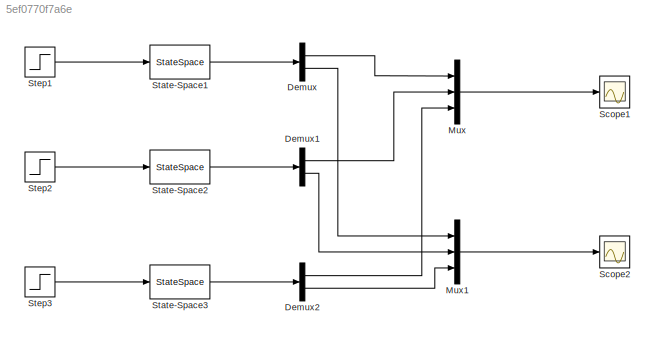
MODEL slx_5ef0770f7a6e
KIND model
BLOCK [Demux] Demux
  DisplayOption = bar
  Outputs = 2
  Ports = [1, 2]
BLOCK [Demux] Demux1
  DisplayOption = bar
  Outputs = 2
  Ports = [1, 2]
BLOCK [Demux] Demux2
  DisplayOption = bar
  Outputs = 2
  Ports = [1, 2]
BLOCK [Mux] Mux
  DisplayOption = bar
  Inputs = 3
  Ports = [3, 1]
BLOCK [Mux] Mux1
  DisplayOption = bar
  Inputs = 3
  Ports = [3, 1]
BLOCK [Scope] Scope1
  Floating = off
  NumInputPorts = 1
  Ports = [1]
  ShowLegends = off
BLOCK [Scope] Scope2
  Floating = off
  NumInputPorts = 1
  Ports = [1]
  SaveName = ScopeData1
  ShowLegends = off
BLOCK [StateSpace] State-Space1
  A = [a_11,a_12;a_21,a_22]
  B = [b_11;b_21]
  C = [1,0;0,1]
  D = [0;0]
  Ports = [1, 1]
  X0 = [0;0]
BLOCK [StateSpace] State-Space2
  A = [a1_11,a1_12;a1_21,a1_22]
  B = [b1_11;b1_21]
  C = [1,0;0,1]
  D = [0;0]
  Ports = [1, 1]
  X0 = [0;0]
BLOCK [StateSpace] State-Space3
  A = [a2_11,a2_12;a2_21,a2_22]
  B = [b2_11;b2_21]
  C = [1,0;0,1]
  D = [0;0]
  Ports = [1, 1]
  X0 = [0;0]
BLOCK [Step] Step1
  After = 4*pi/360
  SampleTime = 0
  Time = 0
BLOCK [Step] Step2
  After = 4*pi/360
  SampleTime = 0
  Time = 0
BLOCK [Step] Step3
  After = 4*pi/360
  SampleTime = 0
  Time = 0
LINE Demux1:1 -> Mux:2
LINE Demux1:2 -> Mux1:2
LINE Demux2:1 -> Mux:3
LINE Demux2:2 -> Mux1:3
LINE Demux:1 -> Mux:1
LINE Demux:2 -> Mux1:1
LINE Mux1:1 -> Scope2:1
LINE Mux:1 -> Scope1:1
LINE State-Space1:1 -> Demux:1
LINE State-Space2:1 -> Demux1:1
LINE State-Space3:1 -> Demux2:1
LINE Step1:1 -> State-Space1:1
LINE Step2:1 -> State-Space2:1
LINE Step3:1 -> State-Space3:1
